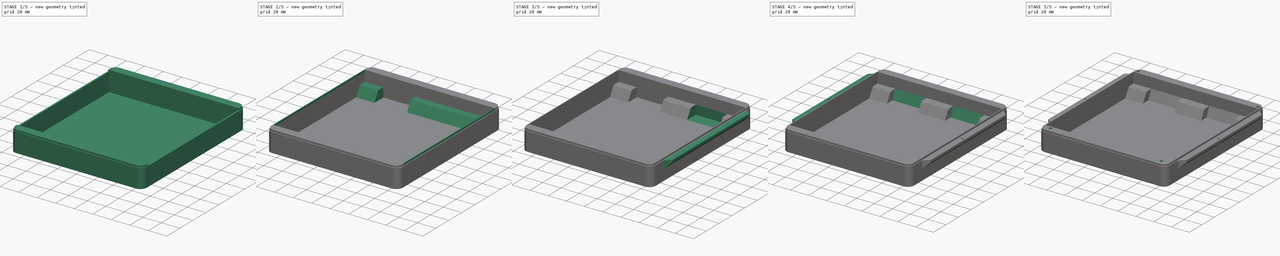
[diagram: build sequence overview — one tinted view per stage of 5, left to right]
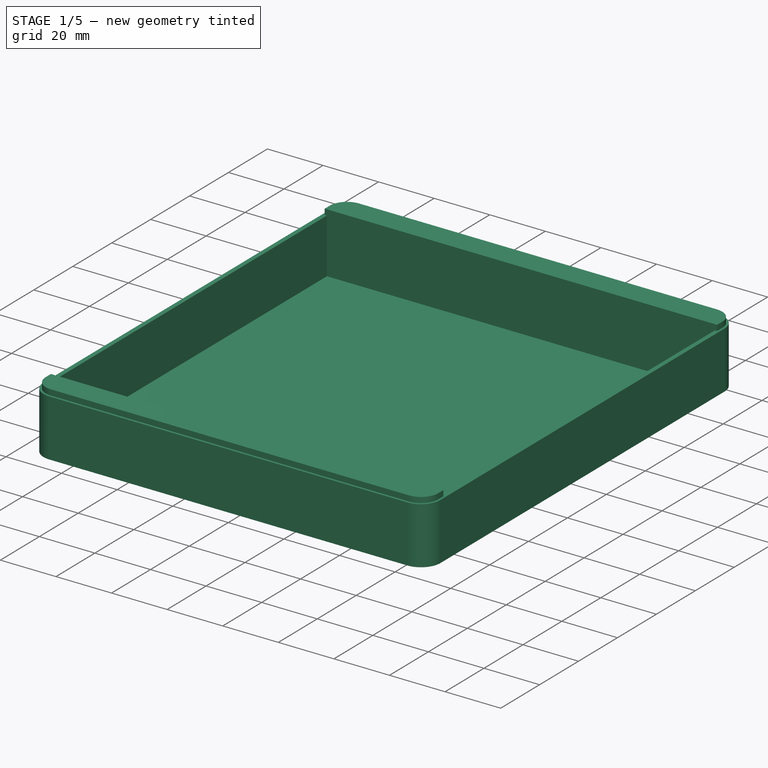
[diagram: stage 1 of 5 — iso view after this stage's code; geometry added in this stage tinted green]
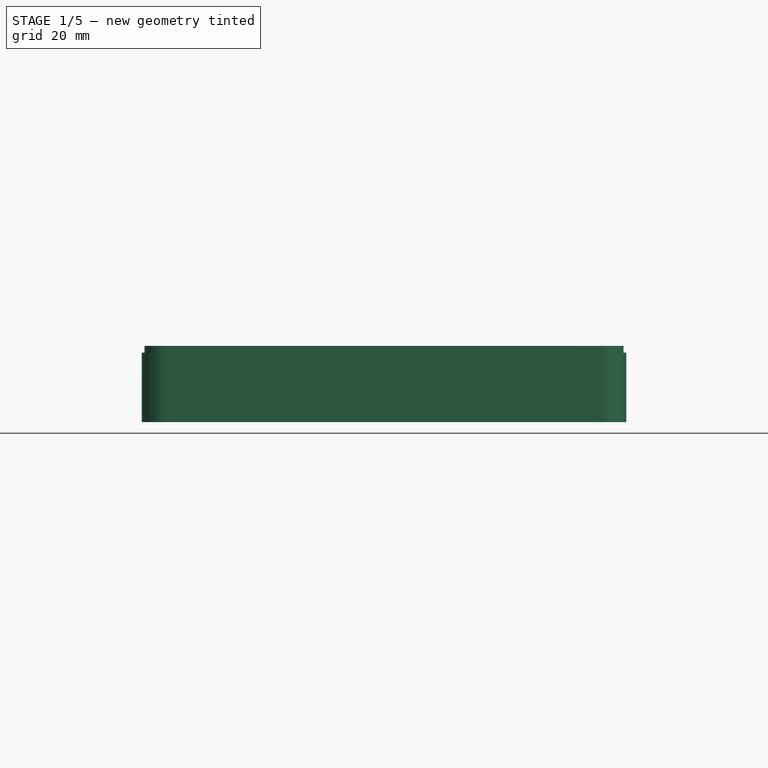
[diagram: stage 1 of 5 — front view after this stage's code; geometry added in this stage tinted green]
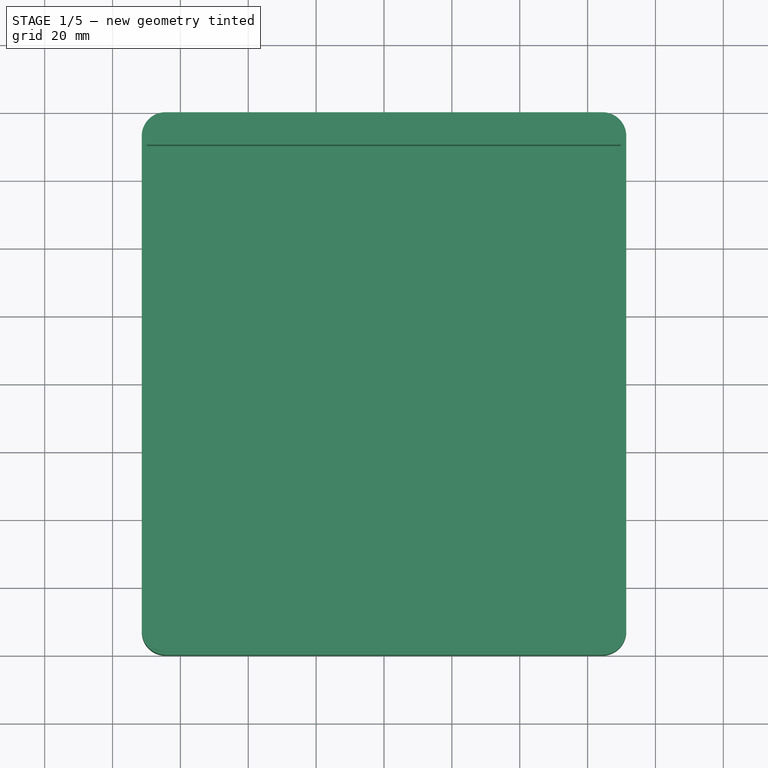
[diagram: stage 1 of 5 — top view after this stage's code; geometry added in this stage tinted green]
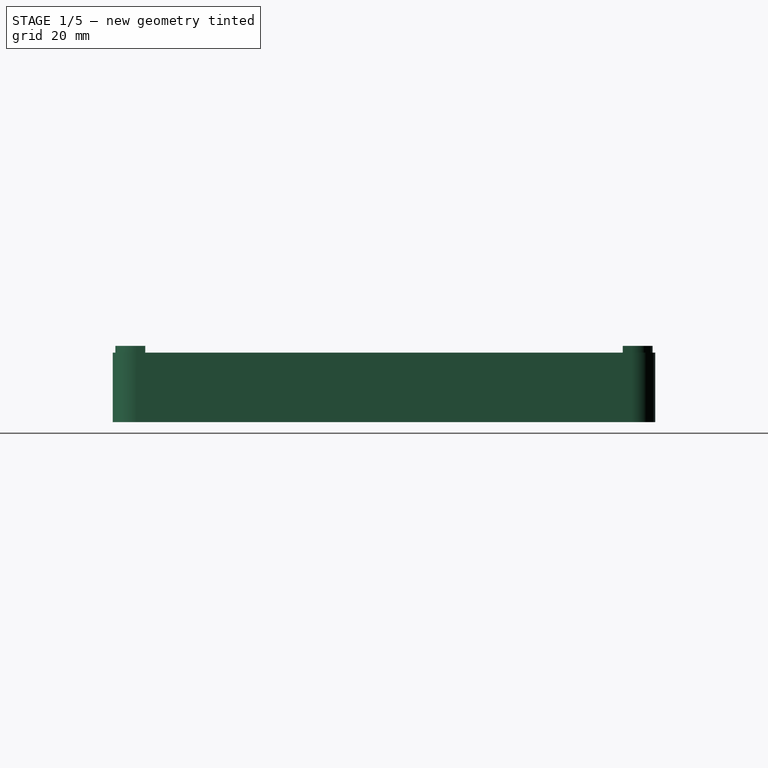
[diagram: stage 1 of 5 — right view after this stage's code; geometry added in this stage tinted green]
FCSTD DOCUMENT  (FreeCAD 2022.1021R26244 +5249 (Git))
Label: pack_bottom
License: All rights reserved
LicenseURL: http://en.wikipedia.org/wiki/All_rights_reserved
objects: Sketcher::SketchObject×17, PartDesign::Pad×17, PartDesign::Fillet×4, PartDesign::Mirrored×4, PartDesign::Draft×3, Spreadsheet::Sheet×1, PartDesign::Chamfer×1, PartDesign::Body×1
note: 122 computed .brp shape members not serialized (recipe doc carries the construction recipe); baked Part::Feature solids carry a one-line shape summary decoded from their .brp

FEATURE [Spreadsheet::Sheet] Spreadsheet  label="Params"
  PythonMode = false
  ShowCells = 0
  TreeRank = 1
  cells = A1=width_inner; B1(width_inner)=139.6; D1=The width of the inside area of the pack; A2=width_wall; B2(width_wall)=1.6; D2=How thick the walls of the pack are; A3=width_wall_handle; B3(width_wall_handle)=8; D3=How thick the wall of the handle side is; A4=width_wall_dock; B4(width_wall_dock)=8; D4=How thick the wall of the docking side is; A5=height_bottom; B5(height_bottom)=0.75; D5=Thickness of the bottom wall; A6=length_inner; B6(length_inner)=140.7; D6=The length of the inside area of the pack; A7=height_inner; B7(height_inner)=19.75; D7=Height of the inside area of the bottom of the pack; A8=angle_slide_rail; B8(angle_slide_rail)=35; A9=angle_slide_rail_end; B9(angle_slide_rail_end)=40; A10=r_corner_roundover; B10(r_corner_roundover)=7; D10=Roundover of the corners of the pack; A11=width_outside_lip; B11(width_outside_lip)=0.8; D11=Width of the lip that makes so the top and bottom of the pack can mate properly. Best to use half of the wall width; A12=height_lip; B12(height_lip)=2; D12=Height of the lip that mates the top and bottom
FEATURE [Sketcher::SketchObject] Sketch  label="main body"
  ArcFitTolerance = 1e-06
  AttachmentSupport = -> [XY_Plane]
  ExternalBSplineMaxDegree = 0
  ExternalBSplineTolerance = 0
  FullyConstrained = true
  InternalTolerance = 1e-06
  MakeInternals = false
  MapMode = 5
  Support = -> [XY_Plane]
  TreeRank = 14
  expr: Constraints[8] = <<Params>>.width_inner + 2 * <<Params>>.width_wall
  expr: Constraints[9] = <<Params>>.length_inner + 2 * <<Params>>.width_wall
  sketch-geometry (4):
    g0: LineSegment StartX=-71.4 StartY=71.95 StartZ=0 EndX=71.4 EndY=71.95 EndZ=0
    g1: LineSegment StartX=71.4 StartY=71.95 StartZ=0 EndX=71.4 EndY=-71.95 EndZ=0
    g2: LineSegment StartX=71.4 StartY=-71.95 StartZ=0 EndX=-71.4 EndY=-71.95 EndZ=0
    g3: LineSegment StartX=-71.4 StartY=-71.95 StartZ=0 EndX=-71.4 EndY=71.95 EndZ=0
  constraints (11):
    c: Coincident(g0,g1)
    c: Coincident(g1,g2)
    c: Coincident(g2,g3)
    c: Coincident(g3,g0)
    c: Horizontal(g0)
    c: Horizontal(g2)
    c: Vertical(g1)
    c: Vertical(g3)
    c: DistanceX(g2,g1) = 142.8
    c: DistanceY(g2,g0) = 143.9
    c: Symmetric(g0,g1,g-1)
FEATURE [PartDesign::Pad] Pad  label="battery box"
  AddSubType = 0
  AlongSketchNormal = false
  AutoTaperInnerAngle = false
  CheckUpToFaceLimits = true
  ClaimChildren = false
  Direction = (0,0,1)
  Fit = 0
  FitJoin = 0
  InnerFit = 0
  InnerFitJoin = 0
  Length = 20.5
  Length2 = 100
  Linearize = true
  NewSolid = false
  Profile = -> Sketch
  Suppress = false
  TaperInnerAngle = 0
  TaperInnerAngleRev = 0
  TreeRank = 15
  Type = 0
  _ProfileBasedVersion = 1
  expr: Length = <<Params>>.height_bottom + <<Params>>.height_inner
FEATURE [Sketcher::SketchObject] Sketch001  label="dock & handle walls"
  ArcFitTolerance = 1e-06
  AttachmentSupport = -> [Pad]
  ExternalBSplineMaxDegree = 0
  ExternalBSplineTolerance = 0
  ExternalGeometry = -> [Pad]
  FullyConstrained = true
  InternalTolerance = 1e-06
  MakeInternals = false
  MapMode = 5
  Placement = pos=(0,0,0) rot=(1,0,0;3.14159rad)
  Support = -> [Pad]
  TreeRank = 16
  expr: Constraints[10] = <<Params>>.width_wall_dock
  expr: Constraints[21] = <<Params>>.width_wall_handle
  sketch-geometry (8):
    g0: LineSegment StartX=-71.4 StartY=71.95 StartZ=0 EndX=71.4 EndY=71.95 EndZ=0
    g1: LineSegment StartX=71.4 StartY=71.95 StartZ=0 EndX=71.4 EndY=79.95 EndZ=0
    g2: LineSegment StartX=71.4 StartY=79.95 StartZ=0 EndX=-71.4 EndY=79.95 EndZ=0
    g3: LineSegment StartX=-71.4 StartY=79.95 StartZ=0 EndX=-71.4 EndY=71.95 EndZ=0
    g4: LineSegment StartX=-71.4 StartY=-71.95 StartZ=0 EndX=71.4 EndY=-71.95 EndZ=0
    g5: LineSegment StartX=71.4 StartY=-71.95 StartZ=0 EndX=71.4 EndY=-79.95 EndZ=0
    g6: LineSegment StartX=71.4 StartY=-79.95 StartZ=0 EndX=-71.4 EndY=-79.95 EndZ=0
    g7: LineSegment StartX=-71.4 StartY=-79.95 StartZ=0 EndX=-71.4 EndY=-71.95 EndZ=0
  constraints (22):
    c: Coincident(g0,g1)
    c: Coincident(g1,g2)
    c: Coincident(g2,g3)
    c: Coincident(g3,g0)
    c: Horizontal(g0)
    c: Horizontal(g2)
    c: Vertical(g1)
    c: Vertical(g3)
    c: Coincident(g0,g-3)
    c: Vertical(g1,g-3)
    c: DistanceY(g0,g2) = 8
    c: Coincident(g4,g5)
    c: Coincident(g5,g6)
    c: Coincident(g6,g7)
    c: Coincident(g7,g4)
    c: Horizontal(g4)
    c: Horizontal(g6)
    c: Vertical(g5)
    c: Vertical(g7)
    c: Coincident(g4,g-4)
    c: Vertical(g5,g-4)
    c: DistanceY(g6,g4) = 8
FEATURE [PartDesign::Pad] Pad001  label="front and back walls"
  AddSubType = 0
  AlongSketchNormal = false
  AutoTaperInnerAngle = false
  BaseFeature = -> Pad
  CheckUpToFaceLimits = true
  ClaimChildren = false
  Direction = (0,0,-1)
  Fit = 0
  FitJoin = 0
  InnerFit = 0
  InnerFitJoin = 0
  Length = 10
  Length2 = 100
  Linearize = true
  NewSolid = false
  Profile = -> Sketch001
  Suppress = false
  TaperInnerAngle = 0
  TaperInnerAngleRev = 0
  TreeRank = 17
  Type = 3
  UpToFace = -> Pad [Face6]
  _ProfileBasedVersion = 1
FEATURE [PartDesign::Fillet] Fillet  label="corner roundover"
  AddSubType = 0
  Base = -> Pad001 [Edge6,Edge9,Edge24,Edge19]
  BaseFeature = -> Pad001
  NewSolid = false
  Radius = 7
  SupportTransform = false
  Suppress = false
  TreeRank = 18
  expr: Radius = Spreadsheet.r_corner_roundover
FEATURE [Sketcher::SketchObject] Sketch002  label="compartment"
  ArcFitTolerance = 1e-06
  AttachmentSupport = -> [Fillet]
  ExternalBSplineMaxDegree = 0
  ExternalBSplineTolerance = 0
  FullyConstrained = true
  InternalTolerance = 1e-06
  MakeInternals = false
  MapMode = 5
  Placement = pos=(0,0,20.5) rot=(0,0,1;0rad)
  Support = -> [Fillet]
  TreeRank = 19
  expr: Constraints[10] = <<Params>>.length_inner
  expr: Constraints[9] = <<Params>>.width_inner
  sketch-geometry (4):
    g0: LineSegment StartX=-69.8 StartY=70.35 StartZ=0 EndX=69.8 EndY=70.35 EndZ=0
    g1: LineSegment StartX=69.8 StartY=70.35 StartZ=0 EndX=69.8 EndY=-70.35 EndZ=0
    g2: LineSegment StartX=69.8 StartY=-70.35 StartZ=0 EndX=-69.8 EndY=-70.35 EndZ=0
    g3: LineSegment StartX=-69.8 StartY=-70.35 StartZ=0 EndX=-69.8 EndY=70.35 EndZ=0
  constraints (11):
    c: Coincident(g0,g1)
    c: Coincident(g1,g2)
    c: Coincident(g2,g3)
    c: Coincident(g3,g0)
    c: Horizontal(g0)
    c: Horizontal(g2)
    c: Vertical(g1)
    c: Vertical(g3)
    c: Symmetric(g0,g1,g-1)
    c: DistanceX(g0,g0) = 139.6
    c: DistanceY(g2,g0) = 140.7
FEATURE [PartDesign::Pad] Pad002
  AddSubType = 1
  AlongSketchNormal = false
  AutoTaperInnerAngle = false
  BaseFeature = -> Fillet
  CheckUpToFaceLimits = true
  ClaimChildren = false
  Direction = (0,0,1)
  Fit = 0
  FitJoin = 0
  InnerFit = 0
  InnerFitJoin = 0
  Length = 19.75
  Length2 = 100
  Linearize = true
  NewSolid = false
  Profile = -> Sketch002
  Reversed = true
  Suppress = false
  TaperInnerAngle = 0
  TaperInnerAngleRev = 0
  TreeRank = 20
  Type = 0
  _ProfileBasedVersion = 1
  expr: Length = <<Params>>.height_inner
FEATURE [Sketcher::SketchObject] Sketch003
  ArcFitTolerance = 1e-06
  AttachmentSupport = -> [Pad002]
  ExternalBSplineMaxDegree = 0
  ExternalBSplineTolerance = 0
  ExternalGeometry = -> [Pad002]
  FullyConstrained = true
  InternalTolerance = 1e-06
  MakeInternals = false
  MapMode = 5
  Placement = pos=(0,0,20.5) rot=(0,0,1;0rad)
  Support = -> [Pad002]
  TreeRank = 21
  expr: Constraints[11] = <<Params>>.width_outside_lip
  sketch-geometry (18):
    g0: LineSegment StartX=-64.4 StartY=79.15 StartZ=0 EndX=64.4 EndY=79.15 EndZ=0
    g1: LineSegment StartX=64.4 StartY=79.15 StartZ=0 EndX=64.4 EndY=70.35 EndZ=0
    g2: LineSegment StartX=64.4 StartY=70.35 StartZ=0 EndX=-64.4 EndY=70.35 EndZ=0
    g3: LineSegment StartX=-64.4 StartY=70.35 StartZ=0 EndX=-64.4 EndY=79.15 EndZ=0
    g4: ArcOfCircle CenterX=64.4 CenterY=72.95 CenterZ=0 NormalX=0 NormalY=0 NormalZ=1 AngleXU=0 Radius=6.2 StartAngle=0 EndAngle=1.5708
    g5: LineSegment StartX=64.4 StartY=72.95 StartZ=0 EndX=64.4 EndY=79.15 EndZ=0
    g6: LineSegment StartX=64.4 StartY=72.95 StartZ=0 EndX=70.6 EndY=72.95 EndZ=0
    g7: LineSegment StartX=64.4 StartY=72.95 StartZ=0 EndX=70.6 EndY=72.95 EndZ=0
    g8: LineSegment StartX=70.6 StartY=72.95 StartZ=0 EndX=70.6 EndY=70.35 EndZ=0
    g9: LineSegment StartX=70.6 StartY=70.35 StartZ=0 EndX=64.4 EndY=70.35 EndZ=0
    g10: LineSegment StartX=64.4 StartY=70.35 StartZ=0 EndX=64.4 EndY=72.95 EndZ=0
    g11: ArcOfCircle CenterX=-64.4 CenterY=72.95 CenterZ=0 NormalX=0 NormalY=0 NormalZ=1 AngleXU=0 Radius=6.2 StartAngle=1.5708 EndAngle=3.14159
    g12: LineSegment StartX=-64.4 StartY=72.95 StartZ=0 EndX=-64.4 EndY=79.15 EndZ=0
    g13: LineSegment StartX=-64.4 StartY=72.95 StartZ=0 EndX=-70.6 EndY=72.95 EndZ=0
    g14: LineSegment StartX=-70.6 StartY=72.95 StartZ=0 EndX=-64.4 EndY=72.95 EndZ=0
    g15: LineSegment StartX=-64.4 StartY=72.95 StartZ=0 EndX=-64.4 EndY=70.35 EndZ=0
    g16: LineSegment StartX=-64.4 StartY=70.35 StartZ=0 EndX=-70.6 EndY=70.35 EndZ=0
    g17: LineSegment StartX=-70.6 StartY=70.35 StartZ=0 EndX=-70.6 EndY=72.95 EndZ=0
  constraints (48):
    c: Coincident(g0,g1)
    c: Coincident(g1,g2)
    c: Coincident(g2,g3)
    c: Coincident(g3,g0)
    c: Horizontal(g0)
    c: Horizontal(g2)
    c: Vertical(g1)
    c: Vertical(g3)
    c: PointOnObject(g-3,g3)
    c: PointOnObject(g-4,g1)
    c: PointOnObject(g1,g-5)
    c: DistanceY(g0,g-4) = 0.8
    c: Coincident(g5,g4)
    c: Coincident(g5,g4)
    c: Vertical(g5)
    c: Coincident(g6,g5)
    c: Coincident(g6,g4)
    c: Horizontal(g6)
    c: Coincident(g5,g-4)
    c: PointOnObject(g4,g0)
    c: Coincident(g7,g8)
    c: Coincident(g8,g9)
    c: Coincident(g9,g10)
    c: Coincident(g10,g7)
    c: Horizontal(g7)
    c: Horizontal(g9)
    c: Vertical(g8)
    c: Vertical(g10)
    c: Coincident(g7,g4)
    c: Coincident(g9,g1)
    c: Coincident(g12,g11)
    c: Coincident(g12,g11)
    c: Vertical(g12)
    c: Coincident(g13,g11)
    c: Coincident(g13,g11)
    c: Horizontal(g13)
    c: Coincident(g11,g-3)
    c: PointOnObject(g11,g0)
    c: Coincident(g14,g15)
    c: Coincident(g15,g16)
    c: Coincident(g16,g17)
    c: Coincident(g17,g14)
    c: Horizontal(g14)
    c: Horizontal(g16)
    c: Vertical(g15)
    c: Vertical(g17)
    c: Coincident(g14,g11)
    c: Coincident(g15,g2)
FEATURE [PartDesign::Pad] Pad003  label="inner lip dock"
  AddSubType = 0
  AlongSketchNormal = false
  AutoTaperInnerAngle = false
  BaseFeature = -> Pad002
  CheckUpToFaceLimits = true
  ClaimChildren = false
  Direction = (0,0,1)
  Fit = 0
  FitJoin = 0
  InnerFit = 0
  InnerFitJoin = 0
  Length = 2
  Length2 = 100
  Linearize = true
  NewSolid = false
  Profile = -> Sketch003
  Suppress = false
  TaperInnerAngle = 0
  TaperInnerAngleRev = 0
  TreeRank = 22
  Type = 0
  _ProfileBasedVersion = 1
  expr: Length = <<Params>>.height_lip
FEATURE [Sketcher::SketchObject] Sketch004
  ArcFitTolerance = 1e-06
  AttachmentSupport = -> [Pad003]
  ExternalBSplineMaxDegree = 0
  ExternalBSplineTolerance = 0
  ExternalGeometry = -> [Pad003]
  FullyConstrained = true
  InternalTolerance = 1e-06
  MakeInternals = false
  MapMode = 5
  Placement = pos=(0,0,20.5) rot=(0,0,1;0rad)
  Support = -> [Pad003]
  TreeRank = 23
  expr: Constraints[40] = <<Params>>.width_outside_lip
  sketch-geometry (18):
    g0: LineSegment StartX=-64.4 StartY=-70.35 StartZ=0 EndX=64.4 EndY=-70.35 EndZ=0
    g1: LineSegment StartX=64.4 StartY=-70.35 StartZ=0 EndX=64.4 EndY=-79.15 EndZ=0
    g2: LineSegment StartX=64.4 StartY=-79.15 StartZ=0 EndX=-64.4 EndY=-79.15 EndZ=0
    g3: LineSegment StartX=-64.4 StartY=-79.15 StartZ=0 EndX=-64.4 EndY=-70.35 EndZ=0
    g4: ArcOfCircle CenterX=-64.4 CenterY=-72.95 CenterZ=0 NormalX=0 NormalY=0 NormalZ=1 AngleXU=0 Radius=6.2 StartAngle=3.14159 EndAngle=4.71239
    g5: LineSegment StartX=-70.6 StartY=-72.95 StartZ=0 EndX=-64.4 EndY=-72.95 EndZ=0
    g6: LineSegment StartX=-64.4 StartY=-72.95 StartZ=0 EndX=-64.4 EndY=-79.15 EndZ=0
    g7: LineSegment StartX=-70.6 StartY=-70.35 StartZ=0 EndX=-64.4 EndY=-70.35 EndZ=0
    g8: LineSegment StartX=-64.4 StartY=-70.35 StartZ=0 EndX=-64.4 EndY=-72.95 EndZ=0
    g9: LineSegment StartX=-64.4 StartY=-72.95 StartZ=0 EndX=-70.6 EndY=-72.95 EndZ=0
    g10: LineSegment StartX=-70.6 StartY=-72.95 StartZ=0 EndX=-70.6 EndY=-70.35 EndZ=0
    g11: ArcOfCircle CenterX=64.4 CenterY=-72.95 CenterZ=0 NormalX=0 NormalY=0 NormalZ=1 AngleXU=0 Radius=6.2 StartAngle=4.71239 EndAngle=6.28319
    g12: LineSegment StartX=64.4 StartY=-79.15 StartZ=0 EndX=64.4 EndY=-72.95 EndZ=0
    g13: LineSegment StartX=64.4 StartY=-72.95 StartZ=0 EndX=70.6 EndY=-72.95 EndZ=0
    g14: LineSegment StartX=64.4 StartY=-72.95 StartZ=0 EndX=70.6 EndY=-72.95 EndZ=0
    g15: LineSegment StartX=70.6 StartY=-72.95 StartZ=0 EndX=70.6 EndY=-70.35 EndZ=0
    g16: LineSegment StartX=70.6 StartY=-70.35 StartZ=0 EndX=64.4 EndY=-70.35 EndZ=0
    g17: LineSegment StartX=64.4 StartY=-70.35 StartZ=0 EndX=64.4 EndY=-72.95 EndZ=0
  constraints (48):
    c: Coincident(g0,g1)
    c: Coincident(g1,g2)
    c: Coincident(g2,g3)
    c: Coincident(g3,g0)
    c: Horizontal(g0)
    c: Horizontal(g2)
    c: Vertical(g1)
    c: Vertical(g3)
    c: Coincident(g5,g4)
    c: Coincident(g5,g4)
    c: Horizontal(g5)
    c: Coincident(g6,g4)
    c: Coincident(g6,g4)
    c: Vertical(g6)
    c: Coincident(g7,g8)
    c: Coincident(g8,g9)
    c: Coincident(g9,g10)
    c: Coincident(g10,g7)
    c: Horizontal(g7)
    c: Horizontal(g9)
    c: Vertical(g8)
    c: Vertical(g10)
    c: Coincident(g12,g11)
    c: Coincident(g12,g11)
    c: Vertical(g12)
    c: Coincident(g13,g11)
    c: Horizontal(g13)
    c: Coincident(g11,g13)
    c: Coincident(g14,g15)
    c: Coincident(g15,g16)
    c: Coincident(g16,g17)
    c: Coincident(g17,g14)
    c: Horizontal(g14)
    c: Horizontal(g16)
    c: Vertical(g15)
    c: Vertical(g17)
    c: PointOnObject(g-3,g3)
    c: PointOnObject(g-4,g1)
    c: PointOnObject(g0,g-5)
    c: Coincident(g11,g-4)
    c: DistanceY(g-4,g1) = 0.8
    c: PointOnObject(g11,g2)
    c: Coincident(g16,g0)
    c: Coincident(g14,g11)
    c: Coincident(g4,g-3)
    c: PointOnObject(g4,g2)
    c: Coincident(g7,g0)
    c: Coincident(g9,g4)
FEATURE [PartDesign::Pad] Pad004  label="inner lip handle"
  AddSubType = 0
  AlongSketchNormal = false
  AutoTaperInnerAngle = false
  BaseFeature = -> Pad003
  CheckUpToFaceLimits = true
  ClaimChildren = false
  Direction = (0,0,1)
  Fit = 0
  FitJoin = 0
  InnerFit = 0
  InnerFitJoin = 0
  Length = 2
  Length2 = 100
  Linearize = true
  NewSolid = false
  Profile = -> Sketch004
  Suppress = false
  TaperInnerAngle = 0
  TaperInnerAngleRev = 0
  TreeRank = 24
  Type = 0
  _ProfileBasedVersion = 1
  expr: Length = <<Params>>.height_lip
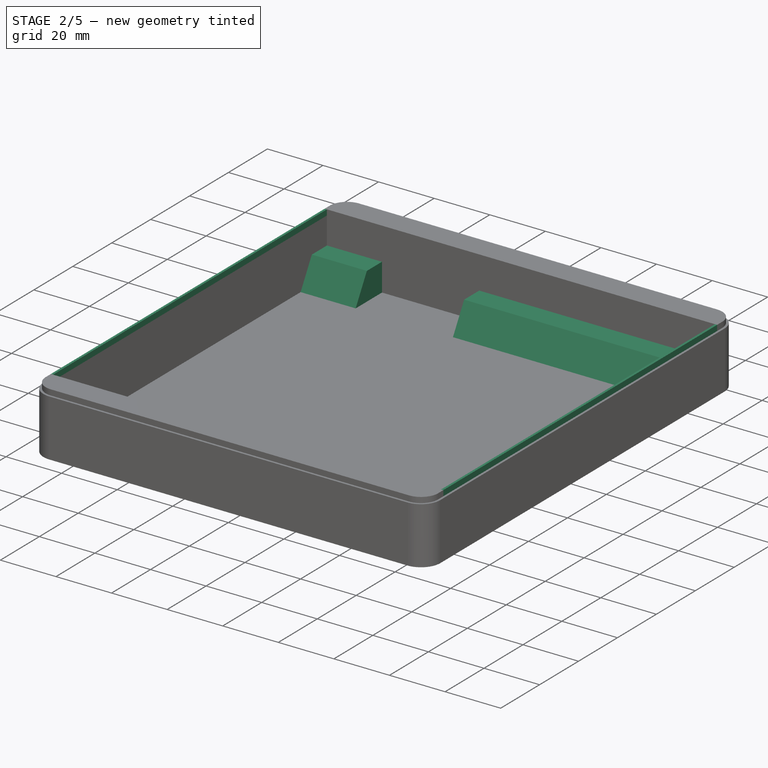
[diagram: stage 2 of 5 — iso view after this stage's code; geometry added in this stage tinted green]
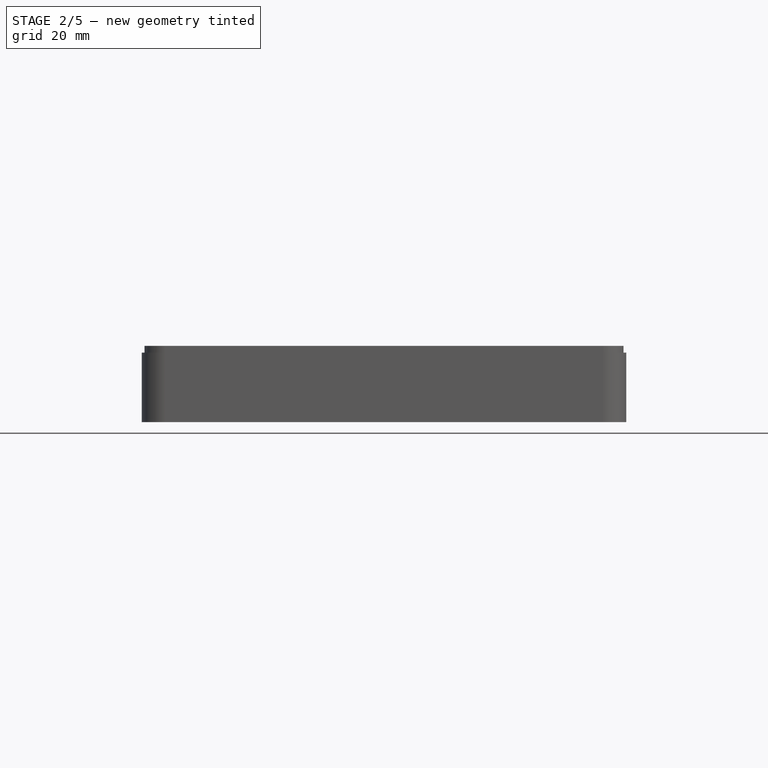
[diagram: stage 2 of 5 — front view after this stage's code; geometry added in this stage tinted green]
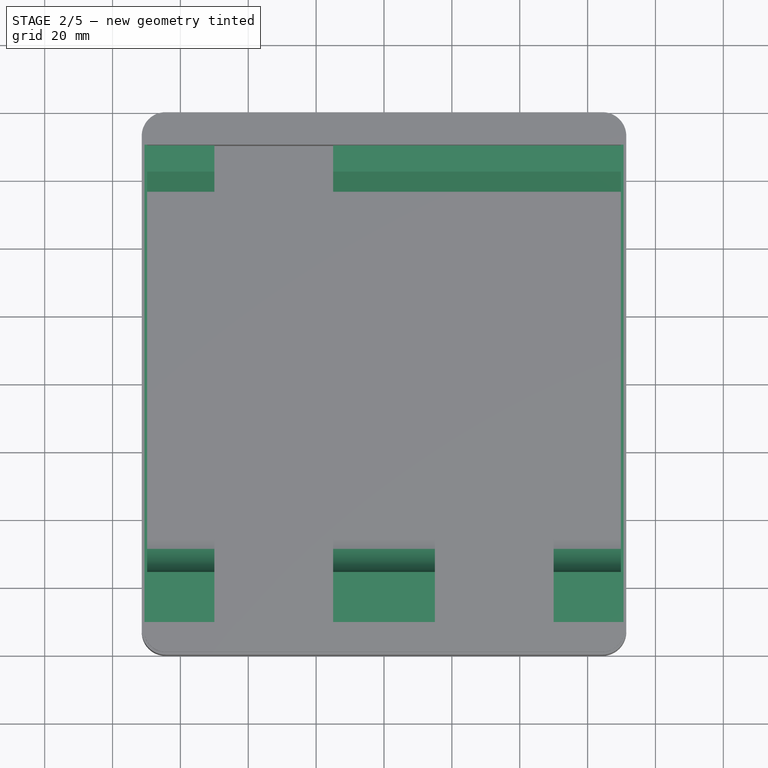
[diagram: stage 2 of 5 — top view after this stage's code; geometry added in this stage tinted green]
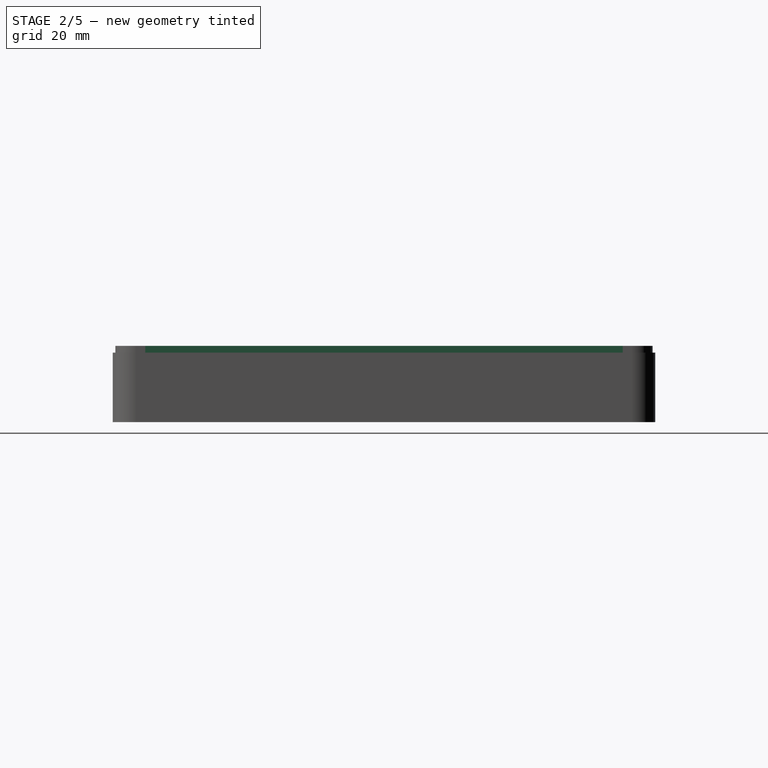
[diagram: stage 2 of 5 — right view after this stage's code; geometry added in this stage tinted green]
FEATURE [Sketcher::SketchObject] Sketch005
  ArcFitTolerance = 1e-06
  AttachmentSupport = -> [Pad004]
  ExternalBSplineMaxDegree = 0
  ExternalBSplineTolerance = 0
  ExternalGeometry = -> [Pad004]
  FullyConstrained = true
  InternalTolerance = 1e-06
  MakeInternals = false
  MapMode = 5
  Placement = pos=(0,0,20.5) rot=(0,0,1;0rad)
  Support = -> [Pad004]
  TreeRank = 25
  sketch-geometry (8):
    g0: LineSegment StartX=-70.6 StartY=70.35 StartZ=0 EndX=-69.8 EndY=70.35 EndZ=0
    g1: LineSegment StartX=-69.8 StartY=70.35 StartZ=0 EndX=-69.8 EndY=-70.35 EndZ=0
    g2: LineSegment StartX=-69.8 StartY=-70.35 StartZ=0 EndX=-70.6 EndY=-70.35 EndZ=0
    g3: LineSegment StartX=-70.6 StartY=-70.35 StartZ=0 EndX=-70.6 EndY=70.35 EndZ=0
    g4: LineSegment StartX=69.8 StartY=70.35 StartZ=0 EndX=70.6 EndY=70.35 EndZ=0
    g5: LineSegment StartX=70.6 StartY=70.35 StartZ=0 EndX=70.6 EndY=-70.35 EndZ=0
    g6: LineSegment StartX=70.6 StartY=-70.35 StartZ=0 EndX=69.8 EndY=-70.35 EndZ=0
    g7: LineSegment StartX=69.8 StartY=-70.35 StartZ=0 EndX=69.8 EndY=70.35 EndZ=0
  constraints (18):
    c: Coincident(g0,g1)
    c: Coincident(g1,g2)
    c: Coincident(g2,g3)
    c: Coincident(g3,g0)
    c: Horizontal(g0)
    c: Vertical(g3)
    c: Coincident(g1,g-5)
    c: Coincident(g2,g-6)
    c: Coincident(g0,g-5)
    c: Coincident(g4,g5)
    c: Coincident(g5,g6)
    c: Coincident(g6,g7)
    c: Coincident(g7,g4)
    c: Horizontal(g4)
    c: Coincident(g6,g-4)
    c: Coincident(g5,g-3)
    c: Coincident(g4,g-4)
    c: Vertical(g5)
FEATURE [PartDesign::Pad] Pad005  label="inner lip sides"
  AddSubType = 0
  AlongSketchNormal = false
  AutoTaperInnerAngle = false
  BaseFeature = -> Pad004
  CheckUpToFaceLimits = true
  ClaimChildren = false
  Direction = (0,0,1)
  Fit = 0
  FitJoin = 0
  InnerFit = 0
  InnerFitJoin = 0
  Length = 2
  Length2 = 100
  Linearize = true
  NewSolid = false
  Profile = -> Sketch005
  Suppress = false
  TaperInnerAngle = 0
  TaperInnerAngleRev = 0
  TreeRank = 26
  Type = 0
  _ProfileBasedVersion = 1
  expr: Length = <<Params>>.height_lip
FEATURE [Sketcher::SketchObject] Sketch006
  ArcFitTolerance = 1e-06
  AttachmentSupport = -> [Pad005]
  ExternalBSplineMaxDegree = 5
  ExternalBSplineTolerance = 0.0001
  ExternalGeometry = -> [Pad005]
  FullyConstrained = true
  InternalTolerance = 1e-06
  MakeInternals = false
  MapMode = 5
  Placement = pos=(-69.8,0,0) rot=(0.57735,0.57735,0.57735;2.0944rad)
  Support = -> [Pad005]
  TreeRank = 27
  sketch-geometry (4):
    g0: LineSegment StartX=56.85 StartY=0.75 StartZ=0 EndX=70.35 EndY=0.75 EndZ=0
    g1: LineSegment StartX=70.35 StartY=0.75 StartZ=0 EndX=70.35 EndY=10.75 EndZ=0
    g2: LineSegment StartX=70.35 StartY=10.75 StartZ=0 EndX=62.6003 EndY=10.75 EndZ=0
    g3: LineSegment StartX=62.6003 StartY=10.75 StartZ=0 EndX=56.85 EndY=0.75 EndZ=0
  constraints (11):
    c: Horizontal(g0)
    c: Coincident(g1,g0)
    c: Coincident(g2,g1)
    c: Horizontal(g2)
    c: Coincident(g3,g2)
    c: Coincident(g3,g0)
    c: Perpendicular(g0,g1)
    c: Angle(g0,g3) = 1.04894
    c: DistanceX(g0,g0) = 13.5
    c: DistanceY(g1,g1) = 10
    c: Coincident(g0,g-3)
FEATURE [PartDesign::Pad] Pad006  label="dock side bat support"
  AddSubType = 0
  AlongSketchNormal = false
  AutoTaperInnerAngle = true
  BaseFeature = -> Pad005
  CheckUpToFaceLimits = true
  ClaimChildren = false
  Direction = (1,0,0)
  Fit = 0
  FitJoin = 0
  InnerFit = 0
  InnerFitJoin = 0
  Length = 20
  Length2 = 100
  Linearize = true
  NewSolid = false
  Profile = -> Sketch006
  Suppress = false
  TaperInnerAngle = 0
  TaperInnerAngleRev = 0
  TreeRank = 28
  Type = 3
  UpToFace = -> Pad005 [Face46]
  _ProfileBasedVersion = 1
  expr: Length = 20
FEATURE [Sketcher::SketchObject] Sketch007
  ArcFitTolerance = 1e-06
  AttachmentSupport = -> [Pad006]
  ExternalBSplineMaxDegree = 5
  ExternalBSplineTolerance = 0.0001
  ExternalGeometry = -> [Pad006]
  FullyConstrained = true
  InternalTolerance = 1e-06
  MakeInternals = false
  MapMode = 5
  Placement = pos=(-69.8,0,0) rot=(0.57735,0.57735,0.57735;2.0944rad)
  Support = -> [Pad006]
  TreeRank = 29
  expr: Constraints[10] = 15 + 19.5 / 2
  expr: Constraints[7] = 19.5 / 2
  expr: Constraints[8] = 19.5 / 2
  sketch-geometry (4):
    g0: LineSegment StartX=-70.35 StartY=10.5 StartZ=0 EndX=-70.35 EndY=0.75 EndZ=0
    g1: LineSegment StartX=-70.35 StartY=0.75 StartZ=0 EndX=-45.6 EndY=0.75 EndZ=0
    g2: LineSegment StartX=-70.35 StartY=10.5 StartZ=0 EndX=-55.35 EndY=10.5 EndZ=0
    g3: ArcOfCircle CenterX=-45.6 CenterY=10.5 CenterZ=0 NormalX=0 NormalY=0 NormalZ=1 AngleXU=0 Radius=9.75 StartAngle=3.14159 EndAngle=4.71239
  constraints (12):
    c: Vertical(g0)
    c: Coincident(g1,g0)
    c: Perpendicular(g0,g1)
    c: Coincident(g2,g0)
    c: Horizontal(g2)
    c: Coincident(g3,g2)
    c: Coincident(g3,g1)
    c: Radius(g3) = 9.75
    c: DistanceY(g0,g0) = 9.75
    c: DistanceX(g2,g2) = 15
    c: DistanceX(g1,g1) = 24.75
    c: Coincident(g0,g-3)
FEATURE [PartDesign::Pad] Pad007  label="handle side bat support"
  AddSubType = 0
  AlongSketchNormal = false
  AutoTaperInnerAngle = true
  BaseFeature = -> Pad006
  CheckUpToFaceLimits = true
  ClaimChildren = false
  Direction = (1,0,0)
  Fit = 0
  FitJoin = 0
  InnerFit = 0
  InnerFitJoin = 0
  Length = 10
  Length2 = 100
  Linearize = true
  NewSolid = false
  Profile = -> Sketch007
  Suppress = false
  TaperInnerAngle = 0
  TaperInnerAngleRev = 0
  TreeRank = 30
  Type = 3
  UpToFace = -> Pad006 [Face46]
  _ProfileBasedVersion = 1
FEATURE [Sketcher::SketchObject] Sketch008
  ArcFitTolerance = 1e-06
  AttachmentSupport = -> [Pad007]
  ExternalBSplineMaxDegree = 5
  ExternalBSplineTolerance = 0.0001
  ExternalGeometry = -> [Pad007]
  FullyConstrained = true
  InternalTolerance = 1e-06
  MakeInternals = false
  MapMode = 5
  Placement = pos=(0,0,10.5) rot=(0,0,1;0rad)
  Support = -> [Pad007]
  TreeRank = 31
  sketch-geometry (4):
    g0: LineSegment StartX=-50 StartY=-45.6 StartZ=0 EndX=-15 EndY=-45.6 EndZ=0
    g1: LineSegment StartX=-15 StartY=-45.6 StartZ=0 EndX=-15 EndY=-70.35 EndZ=0
    g2: LineSegment StartX=-15 StartY=-70.35 StartZ=0 EndX=-50 EndY=-70.35 EndZ=0
    g3: LineSegment StartX=-50 StartY=-70.35 StartZ=0 EndX=-50 EndY=-45.6 EndZ=0
  constraints (12):
    c: Coincident(g0,g1)
    c: Coincident(g1,g2)
    c: Coincident(g2,g3)
    c: Coincident(g3,g0)
    c: Horizontal(g0)
    c: Horizontal(g2)
    c: Vertical(g1)
    c: Vertical(g3)
    c: Distance(g1,g-2) = 15
    c: DistanceX(g0,g0) = 35
    c: PointOnObject(g1,g-3)
    c: PointOnObject(g0,g-4)
FEATURE [PartDesign::Pad] Pad008  label="handle side support cutout"
  AddSubType = 1
  AlongSketchNormal = false
  AutoTaperInnerAngle = true
  BaseFeature = -> Pad007
  CheckUpToFaceLimits = true
  ClaimChildren = false
  Direction = (0,0,1)
  Fit = 0
  FitJoin = 0
  InnerFit = 0
  InnerFitJoin = 0
  Length = 10
  Length2 = 100
  Linearize = true
  NewSolid = false
  Profile = -> Sketch008
  Suppress = false
  TaperInnerAngle = 0
  TaperInnerAngleRev = 0
  TreeRank = 32
  Type = 3
  UpToFace = -> Pad007 [Face51]
  _ProfileBasedVersion = 1
FEATURE [PartDesign::Mirrored] Mirrored
  AddSubType = 0
  BaseFeature = -> Pad008
  CopyShape = false
  MirrorPlane = -> YZ_Plane
  NewSolid = false
  ParallelTransform = true
  SubTransform = true
  Suppress = false
  TreeRank = 33
  _Version = 3
FEATURE [Sketcher::SketchObject] Sketch009
  ArcFitTolerance = 1e-06
  AttachmentSupport = -> [Mirrored]
  ExternalBSplineMaxDegree = 5
  ExternalBSplineTolerance = 0.0001
  ExternalGeometry = -> [Mirrored]
  FullyConstrained = true
  InternalTolerance = 1e-06
  MakeInternals = false
  MapMode = 5
  Placement = pos=(0,0,10.75) rot=(0,0,1;0rad)
  Support = -> [Mirrored]
  TreeRank = 34
  expr: Constraints[8] = 30 / 2
  sketch-geometry (4):
    g0: LineSegment StartX=-50 StartY=70.35 StartZ=0 EndX=-15 EndY=70.35 EndZ=0
    g1: LineSegment StartX=-15 StartY=70.35 StartZ=0 EndX=-15 EndY=56.85 EndZ=0
    g2: LineSegment StartX=-15 StartY=56.85 StartZ=0 EndX=-50 EndY=56.85 EndZ=0
    g3: LineSegment StartX=-50 StartY=56.85 StartZ=0 EndX=-50 EndY=70.35 EndZ=0
  constraints (12):
    c: Coincident(g0,g1)
    c: Coincident(g1,g2)
    c: Coincident(g2,g3)
    c: Coincident(g3,g0)
    c: Horizontal(g0)
    c: Horizontal(g2)
    c: Vertical(g1)
    c: Vertical(g3)
    c: Distance(g1,g-2) = 15
    c: DistanceX(g2,g2) = 35
    c: PointOnObject(g0,g-4)
    c: PointOnObject(g2,g-3)
FEATURE [PartDesign::Pad] Pad009  label="dock side support cutout"
  AddSubType = 1
  AlongSketchNormal = false
  AutoTaperInnerAngle = true
  BaseFeature = -> Mirrored
  CheckUpToFaceLimits = true
  ClaimChildren = false
  Direction = (0,0,1)
  Fit = 0
  FitJoin = 0
  InnerFit = 0
  InnerFitJoin = 0
  Length = 10
  Length2 = 100
  Linearize = true
  NewSolid = false
  Profile = -> Sketch009
  Suppress = false
  TaperInnerAngle = 0
  TaperInnerAngleRev = 0
  TreeRank = 35
  Type = 3
  UpToFace = -> Mirrored [Face55]
  _ProfileBasedVersion = 1
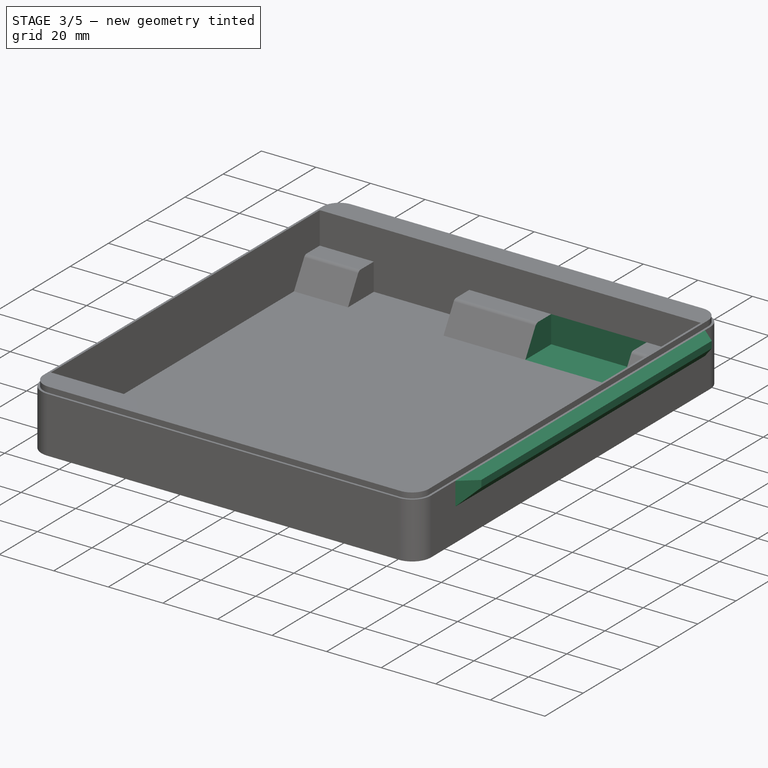
[diagram: stage 3 of 5 — iso view after this stage's code; geometry added in this stage tinted green]
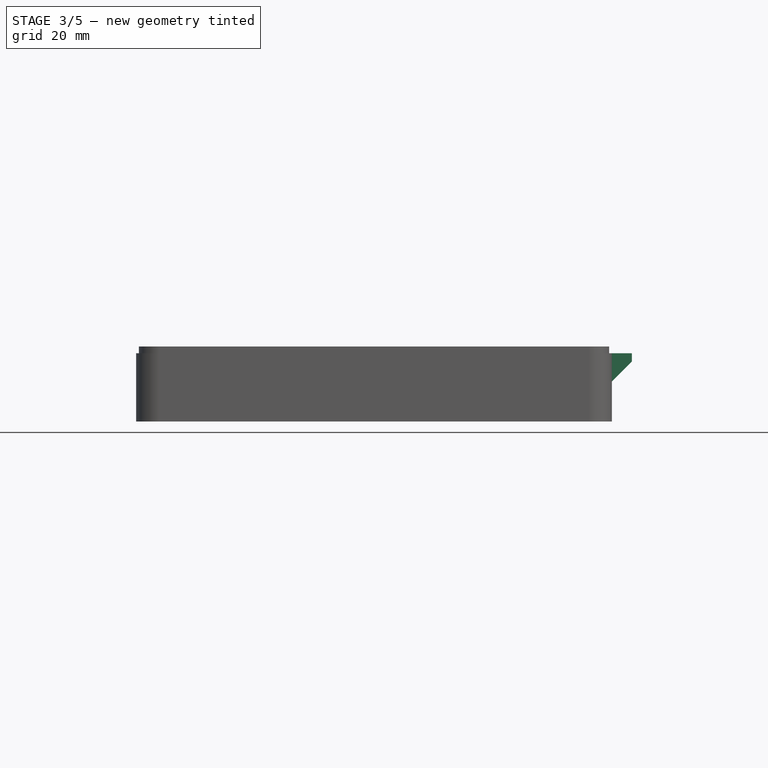
[diagram: stage 3 of 5 — front view after this stage's code; geometry added in this stage tinted green]
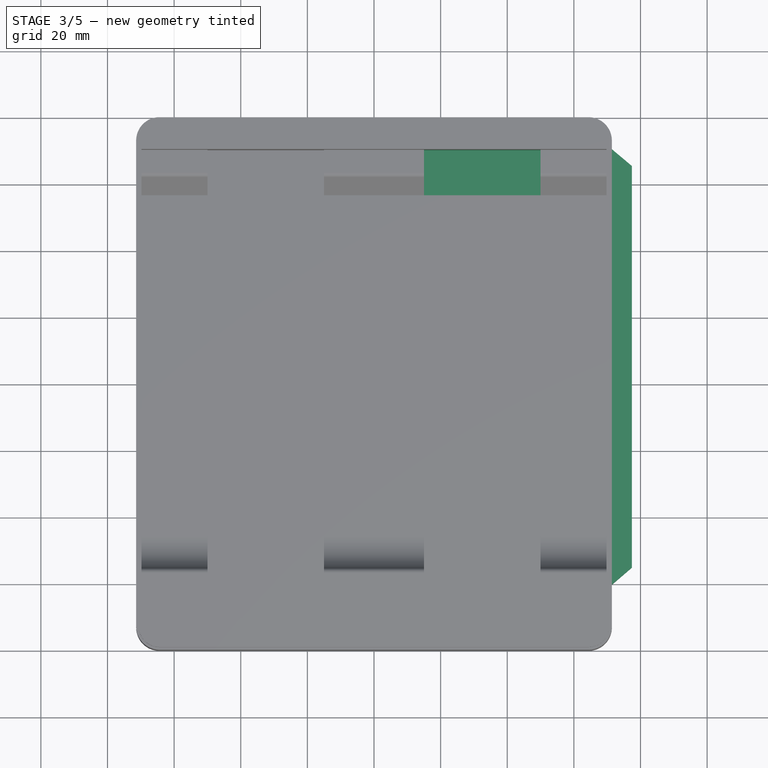
[diagram: stage 3 of 5 — top view after this stage's code; geometry added in this stage tinted green]
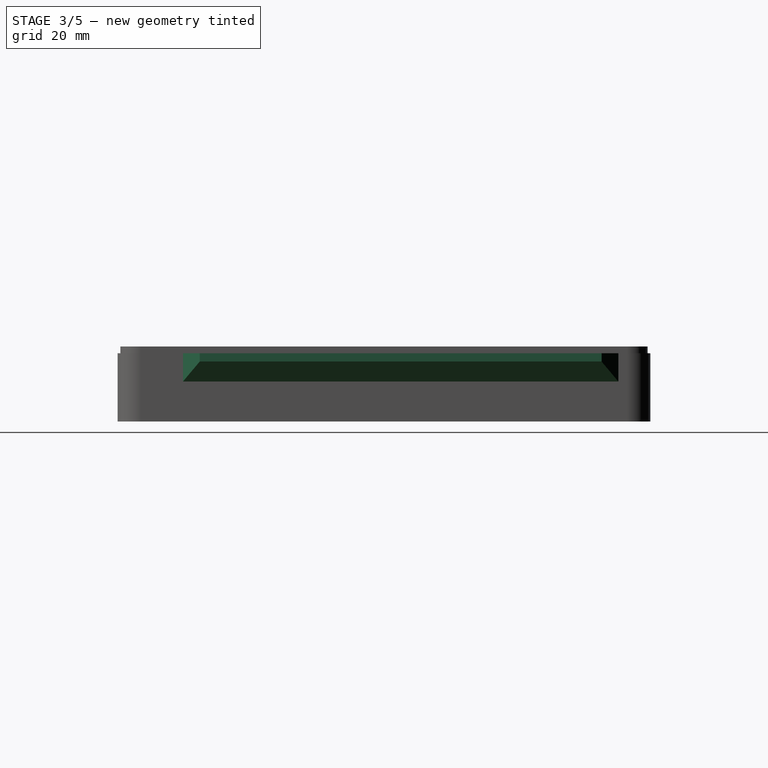
[diagram: stage 3 of 5 — right view after this stage's code; geometry added in this stage tinted green]
FEATURE [PartDesign::Mirrored] Mirrored001
  AddSubType = 0
  BaseFeature = -> Pad009
  CopyShape = false
  MirrorPlane = -> YZ_Plane
  NewSolid = false
  ParallelTransform = true
  SubTransform = true
  Suppress = false
  TreeRank = 36
  _Version = 3
FEATURE [PartDesign::Fillet] Fillet001
  AddSubType = 0
  Base = -> Mirrored001 [Edge137,Edge143,Edge131]
  BaseFeature = -> Mirrored001
  NewSolid = false
  Radius = 1.5
  SupportTransform = false
  Suppress = false
  TreeRank = 37
FEATURE [PartDesign::Fillet] Fillet002
  AddSubType = 0
  Base = -> Fillet001 [Edge70,Edge65,Edge27]
  BaseFeature = -> Fillet001
  NewSolid = false
  Radius = 1.5
  SupportTransform = false
  Suppress = false
  TreeRank = 38
FEATURE [Sketcher::SketchObject] Sketch010
  ArcFitTolerance = 1e-06
  AttachmentSupport = -> [Fillet002]
  ExternalBSplineMaxDegree = 5
  ExternalBSplineTolerance = 0.0001
  ExternalGeometry = -> [Fillet002]
  FullyConstrained = true
  InternalTolerance = 1e-06
  MakeInternals = false
  MapMode = 5
  Placement = pos=(0,70.35,0) rot=(1,0,0;1.5708rad)
  Support = -> [Fillet002]
  TreeRank = 39
  sketch-geometry (4):
    g0: LineSegment StartX=71.4 StartY=20.5 StartZ=0 EndX=77.4 EndY=20.5 EndZ=0
    g1: LineSegment StartX=77.4 StartY=20.5 StartZ=0 EndX=77.4 EndY=18 EndZ=0
    g2: LineSegment StartX=71.4 StartY=12 StartZ=0 EndX=71.4 EndY=20.5 EndZ=0
    g3: LineSegment StartX=77.4 StartY=18 StartZ=0 EndX=71.4 EndY=12 EndZ=0
  constraints (11):
    c: Coincident(g0,g1)
    c: Coincident(g2,g0)
    c: Horizontal(g0)
    c: Vertical(g1)
    c: Vertical(g2)
    c: DistanceX(g0,g0) = 6
    c: DistanceY(g1,g1) = 2.5
    c: Coincident(g3,g1)
    c: Coincident(g2,g3)
    c: Angle(g3,g2) = 0.785398
    c: Coincident(g0,g-3)
FEATURE [PartDesign::Pad] Pad010  label="slide rail"
  AddSubType = 0
  AlongSketchNormal = false
  AutoTaperInnerAngle = true
  BaseFeature = -> Fillet002
  CheckUpToFaceLimits = true
  ClaimChildren = false
  Direction = (0,-1,2e-16)
  Fit = 0
  FitJoin = 0
  InnerFit = 0
  InnerFitJoin = 0
  Length = 130.7
  Length2 = 100
  Linearize = true
  NewSolid = false
  Profile = -> Sketch010
  Suppress = false
  TaperInnerAngle = 0
  TaperInnerAngleRev = 0
  TreeRank = 40
  Type = 0
  _ProfileBasedVersion = 1
  expr: Length = <<Params>>.length_inner - 10
FEATURE [PartDesign::Draft] Draft
  AddSubType = 0
  Angle = 40
  Base = -> Pad010 [Face84,Face82]
  BaseFeature = -> Pad010
  NeutralPlane = -> Pad010 [Face68]
  NewSolid = false
  SupportTransform = false
  Suppress = false
  TreeRank = 41
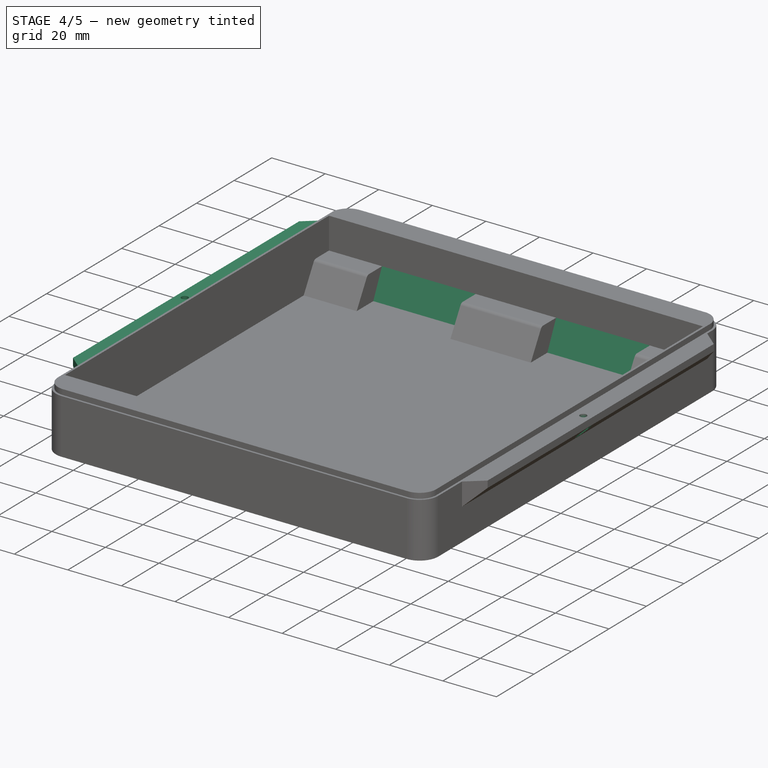
[diagram: stage 4 of 5 — iso view after this stage's code; geometry added in this stage tinted green]
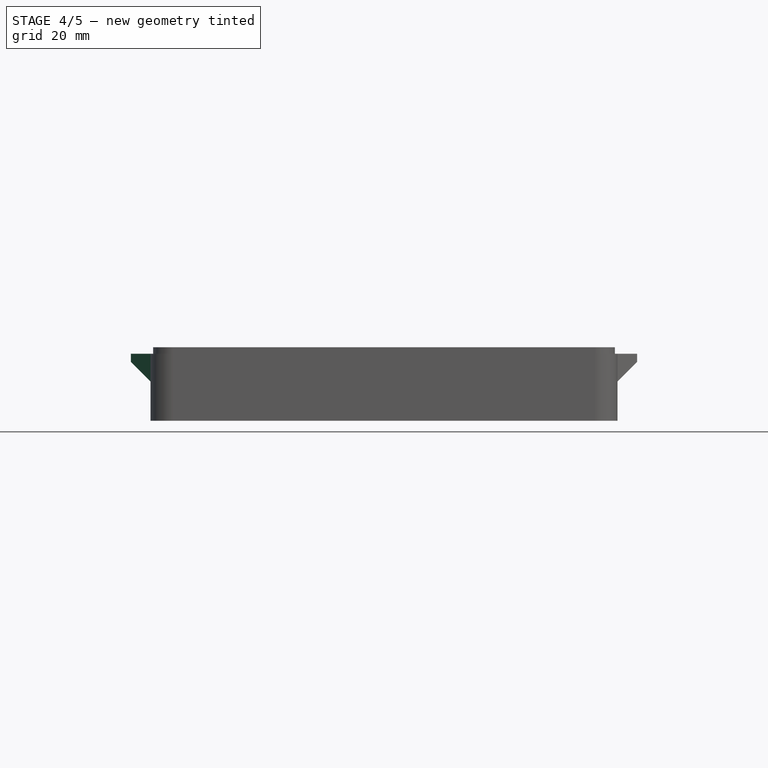
[diagram: stage 4 of 5 — front view after this stage's code; geometry added in this stage tinted green]
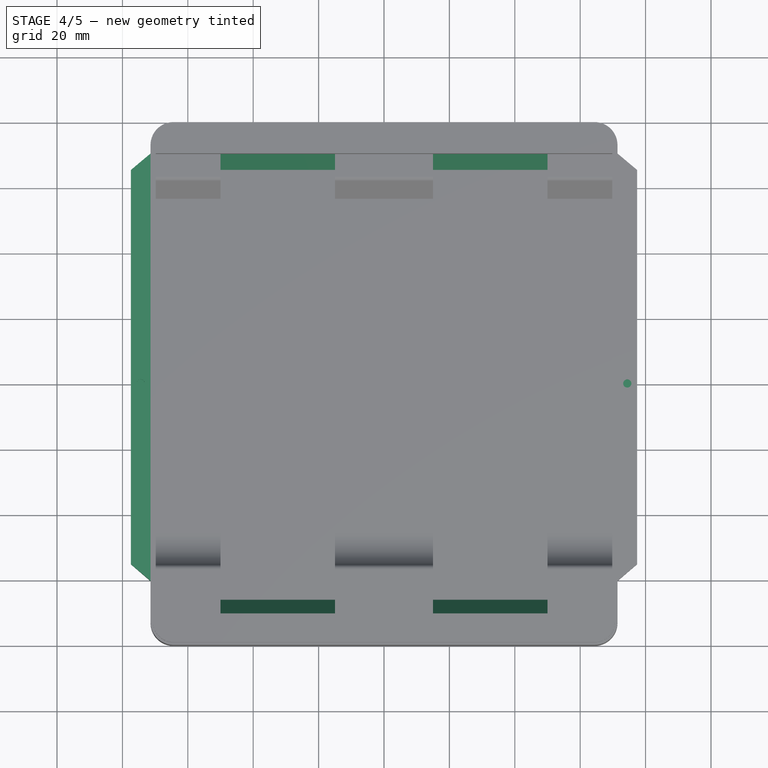
[diagram: stage 4 of 5 — top view after this stage's code; geometry added in this stage tinted green]
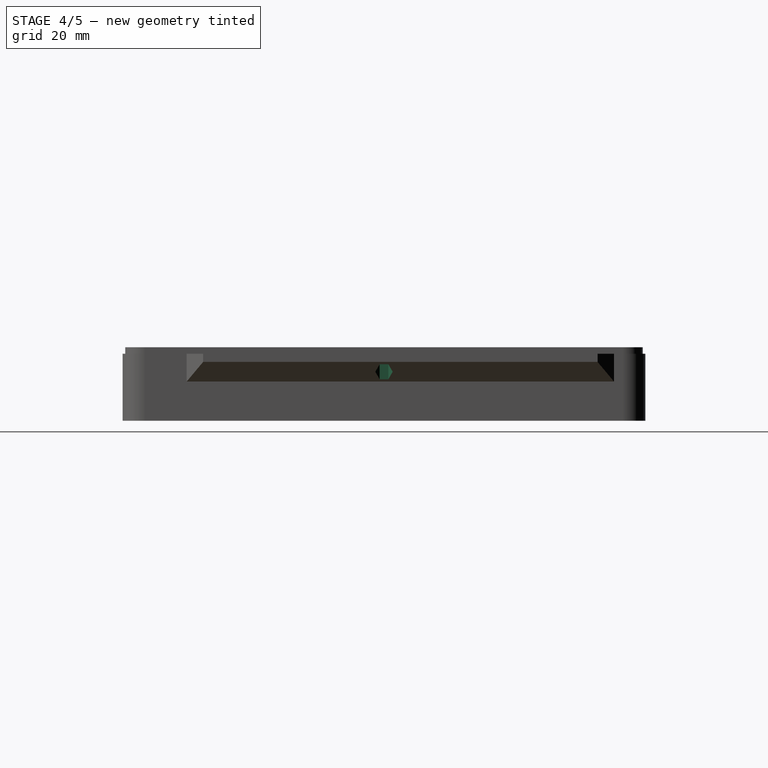
[diagram: stage 4 of 5 — right view after this stage's code; geometry added in this stage tinted green]
FEATURE [Sketcher::SketchObject] Sketch011
  ArcFitTolerance = 1e-06
  AttachmentOffset = pos=(0,0,-1.5) rot=(0,0,1;0rad)
  AttachmentSupport = -> [Draft]
  ExternalBSplineMaxDegree = 5
  ExternalBSplineTolerance = 0.0001
  ExternalGeometry = -> [Draft]
  FullyConstrained = false
  InternalTolerance = 1e-06
  MakeInternals = false
  MapMode = 5
  Placement = pos=(0,4.2e-15,19) rot=(0,0,1;0rad)
  Support = -> [Draft]
  TreeRank = 42
  sketch-geometry (9):
    g0: LineSegment StartX=74.4 StartY=-2.65581 StartZ=0 EndX=76.7 EndY=-1.32791 EndZ=0
    g1: LineSegment StartX=76.7 StartY=-1.32791 StartZ=0 EndX=76.7 EndY=1.32791 EndZ=0
    g2: LineSegment StartX=76.7 StartY=1.32791 StartZ=0 EndX=74.4 EndY=2.65581 EndZ=0
    g3: LineSegment StartX=74.4 StartY=2.65581 StartZ=0 EndX=72.1 EndY=1.32791 EndZ=0
    g4: LineSegment StartX=72.1 StartY=1.32791 StartZ=0 EndX=72.1 EndY=-1.32791 EndZ=0
    g5: LineSegment StartX=72.1 StartY=-1.32791 StartZ=0 EndX=74.4 EndY=-2.65581 EndZ=0
    g6: Circle [constr] CenterX=74.4 CenterY=0 CenterZ=0 NormalX=0 NormalY=0 NormalZ=1 AngleXU=0 Radius=2.65581
    g7: LineSegment [constr] StartX=71.4 StartY=3.25957 StartZ=0 EndX=77.4 EndY=3.25957 EndZ=0
    g8: GeomPoint [constr] X=74.4 Y=3.25957 Z=0
  constraints (21):
    c: Coincident(g0,g1)
    c: Coincident(g1,g2)
    c: Coincident(g2,g3)
    c: Coincident(g3,g4)
    c: Coincident(g4,g5)
    c: Coincident(g5,g0)
    c: Equal(g0, g1-g5) x5
    c: PointOnObject(g0,g6)
    c: PointOnObject(g1,g6)
    c: PointOnObject(g2,g6)
    c: PointOnObject(g3,g6)
    c: PointOnObject(g4,g6)
    c: PointOnObject(g5,g6)
    c: PointOnObject(g6,g-1)
    c: Parallel(g1,g-3)
    c: Distance(g4,g0) = 4.6
    c: PointOnObject(g7,g-4)
    c: PointOnObject(g7,g-3)
    c: Horizontal(g7)
    c: Symmetric(g7,g7,g8)
    c: Vertical(g6,g8)
FEATURE [PartDesign::Pad] Pad011  label="M2 nut holder"
  AddSubType = 1
  AlongSketchNormal = false
  AutoTaperInnerAngle = true
  BaseFeature = -> Draft
  CheckUpToFaceLimits = true
  ClaimChildren = false
  Direction = (0,2e-16,1)
  Fit = 0
  FitJoin = 0
  InnerFit = 0
  InnerFitJoin = 0
  Length = 10
  Length2 = 100
  Linearize = true
  NewSolid = false
  Profile = -> Sketch011
  Reversed = true
  Suppress = false
  TaperInnerAngle = 0
  TaperInnerAngleRev = 0
  TreeRank = 43
  Type = 1
  _ProfileBasedVersion = 1
FEATURE [Sketcher::SketchObject] Sketch012
  ArcFitTolerance = 1e-06
  AttachmentSupport = -> [Pad011]
  ExternalBSplineMaxDegree = 5
  ExternalBSplineTolerance = 0.0001
  ExternalGeometry = -> [Pad011]
  FullyConstrained = true
  InternalTolerance = 1e-06
  MakeInternals = false
  MapMode = 5
  Placement = pos=(0,0,19) rot=(1,0,0;3.14159rad)
  Support = -> [Pad011]
  TreeRank = 44
  sketch-geometry (1):
    g0: Circle CenterX=74.4 CenterY=0 CenterZ=0 NormalX=0 NormalY=0 NormalZ=1 AngleXU=0 Radius=1.25
  constraints (3):
    c: PointOnObject(g0,g-1)
    c: Diameter(g0) = 2.5
    c: Vertical(g-3,g0)
FEATURE [PartDesign::Pad] Pad012  label="M2 clamp screw hole"
  AddSubType = 1
  AlongSketchNormal = false
  AutoTaperInnerAngle = true
  BaseFeature = -> Pad011
  CheckUpToFaceLimits = true
  ClaimChildren = false
  Direction = (0,0,-1)
  Fit = 0
  FitJoin = 0
  InnerFit = 0
  InnerFitJoin = 0
  Length = 11
  Length2 = 100
  Linearize = true
  NewSolid = false
  Profile = -> Sketch012
  Suppress = false
  TaperInnerAngle = 0
  TaperInnerAngleRev = 0
  TreeRank = 45
  Type = 3
  UpToFace = -> Pad011 [Face69]
  _ProfileBasedVersion = 1
FEATURE [Sketcher::SketchObject] Sketch013
  ArcFitTolerance = 1e-06
  AttachmentSupport = -> [Pad012]
  ExternalBSplineMaxDegree = 5
  ExternalBSplineTolerance = 0.0001
  ExternalGeometry = -> [Pad012]
  FullyConstrained = true
  InternalTolerance = 1e-06
  MakeInternals = false
  MapMode = 5
  Placement = pos=(0,0,19) rot=(1,0,0;3.14159rad)
  Support = -> [Pad012]
  TreeRank = 46
  sketch-geometry (1):
    g0: Circle CenterX=74.4 CenterY=0 CenterZ=0 NormalX=0 NormalY=0 NormalZ=1 AngleXU=0 Radius=1.3
  constraints (2):
    c: Coincident(g0,g-3)
    c: Diameter(g0) = 2.6
FEATURE [PartDesign::Pad] Pad013  label="M2 printing support"
  AddSubType = 0
  AlongSketchNormal = false
  AutoTaperInnerAngle = true
  BaseFeature = -> Pad012
  CheckUpToFaceLimits = true
  ClaimChildren = false
  Direction = (0,0,-1)
  Fit = 0
  FitJoin = 0
  InnerFit = 0
  InnerFitJoin = 0
  Length = 0.25
  Length2 = 100
  Linearize = true
  NewSolid = false
  Profile = -> Sketch013
  Reversed = true
  Suppress = false
  TaperInnerAngle = 0
  TaperInnerAngleRev = 0
  TreeRank = 47
  Type = 0
  _ProfileBasedVersion = 1
FEATURE [PartDesign::Mirrored] Mirrored002  label="mirror slide rail"
  AddSubType = 0
  BaseFeature = -> Pad013
  CopyShape = false
  MirrorPlane = -> YZ_Plane
  NewSolid = false
  OriginalSubs = -> [Pad013,Pad012,Pad011,Draft,Pad010]
  Originals = -> [Pad013,Pad012,Pad011,Draft,Pad010]
  ParallelTransform = true
  SubTransform = true
  Suppress = false
  TreeRank = 48
  _Version = 3
FEATURE [PartDesign::Draft] Draft001  label="handle side draft"
  AddSubType = 0
  Angle = 25
  Base = -> Mirrored002 [Face29,Face27]
  BaseFeature = -> Mirrored002
  NeutralPlane = -> Mirrored002 [Face28]
  NewSolid = false
  SupportTransform = false
  Suppress = false
  TreeRank = 49
FEATURE [PartDesign::Draft] Draft002
  AddSubType = 0
  Angle = 25
  Base = -> Draft001 [Face37,Face35]
  BaseFeature = -> Draft001
  NeutralPlane = -> Draft001 [Face36]
  NewSolid = false
  Reversed = true
  SupportTransform = false
  Suppress = false
  TreeRank = 50
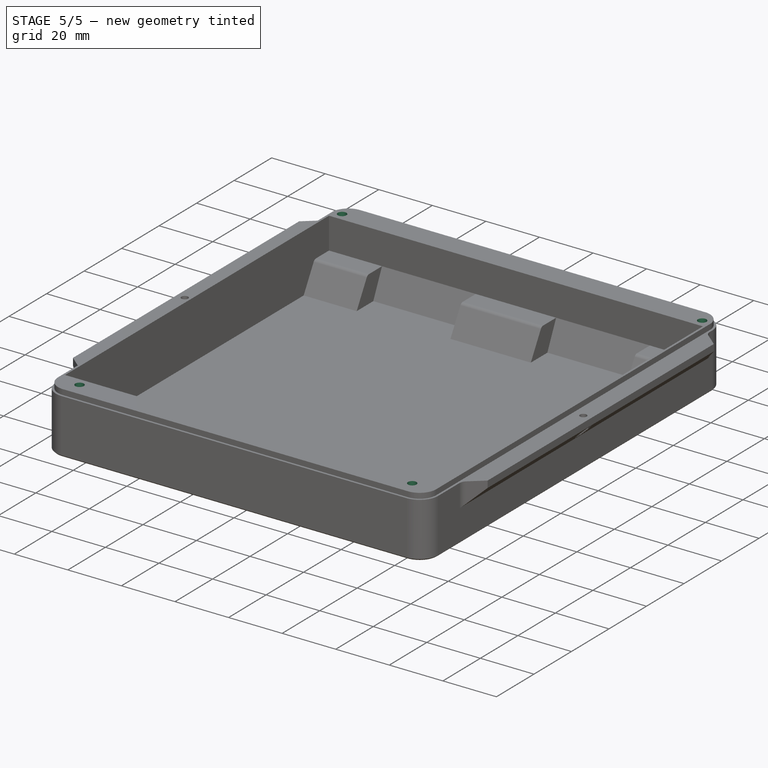
[diagram: stage 5 of 5 — iso view after this stage's code; geometry added in this stage tinted green]
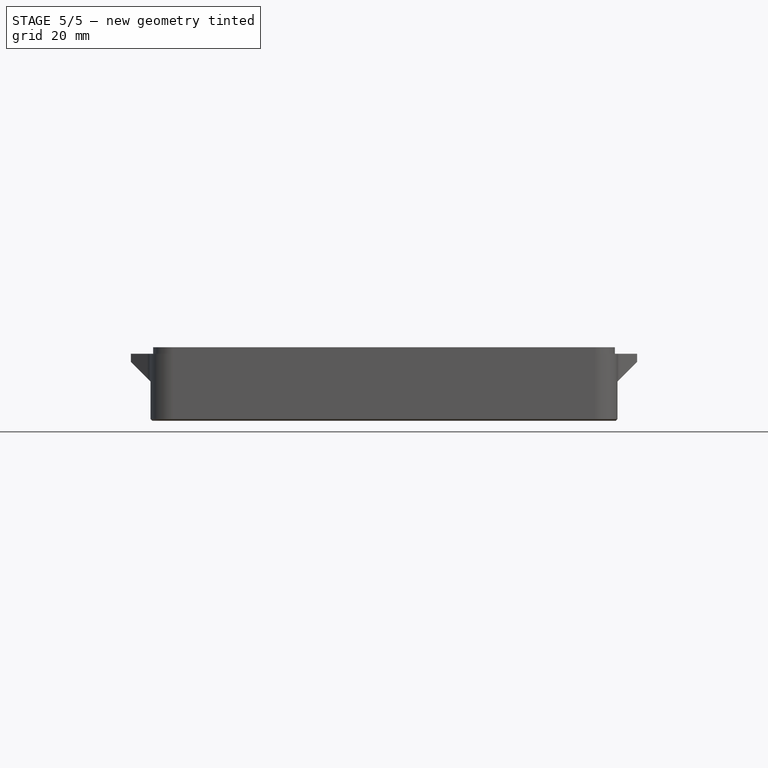
[diagram: stage 5 of 5 — front view after this stage's code; geometry added in this stage tinted green]
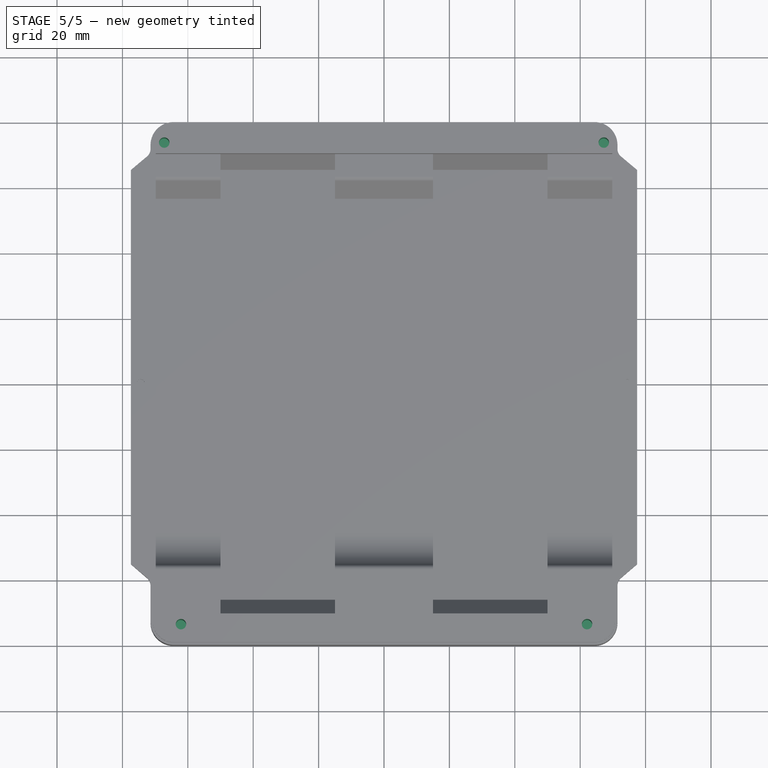
[diagram: stage 5 of 5 — top view after this stage's code; geometry added in this stage tinted green]
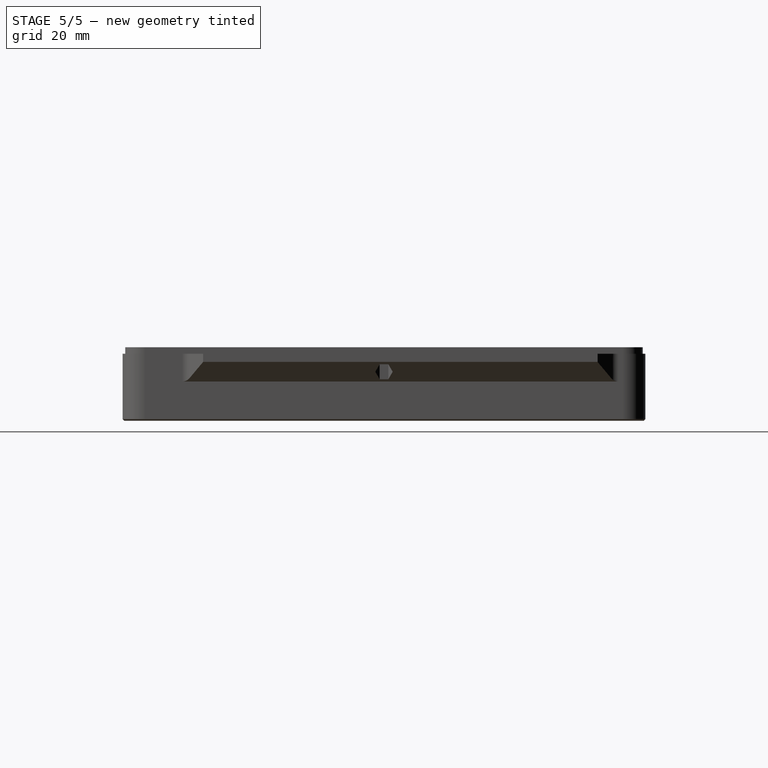
[diagram: stage 5 of 5 — right view after this stage's code; geometry added in this stage tinted green]
FEATURE [Sketcher::SketchObject] Sketch014
  ArcFitTolerance = 1e-06
  AttachmentSupport = -> [Draft002]
  ExternalBSplineMaxDegree = 5
  ExternalBSplineTolerance = 0.0001
  ExternalGeometry = -> [Draft002]
  FullyConstrained = true
  InternalTolerance = 1e-06
  MakeInternals = false
  MapMode = 5
  Placement = pos=(0,0,22.5) rot=(0,0,1;0rad)
  Support = -> [Draft002]
  TreeRank = 51
  expr: Constraints[7] = 6 + 6.6 / 2
  sketch-geometry (4):
    g0: Circle CenterX=67.2142 CenterY=73.65 CenterZ=0 NormalX=0 NormalY=0 NormalZ=1 AngleXU=0 Radius=1.6
    g1: Circle [constr] CenterX=67.2142 CenterY=73.65 CenterZ=0 NormalX=0 NormalY=0 NormalZ=1 AngleXU=0 Radius=3.3
    g2: Circle [constr] CenterX=62.1 CenterY=-73.65 CenterZ=0 NormalX=0 NormalY=0 NormalZ=1 AngleXU=0 Radius=3.3
    g3: Circle CenterX=62.1 CenterY=-73.65 CenterZ=0 NormalX=0 NormalY=0 NormalZ=1 AngleXU=0 Radius=1.6
  constraints (10):
    c: Diameter(g0) = 3.2
    c: Diameter(g1) = 6.6
    c: Tangent(g1,g-3)
    c: Tangent(g1,g-4)
    c: Coincident(g0,g1)
    c: Diameter(g2) = 6.6
    c: Tangent(g2,g-5)
    c: Distance(g2,g-6) = 9.3
    c: Diameter(g3) = 3.2
    c: Coincident(g3,g2)
FEATURE [PartDesign::Pad] Pad014  label="shell screw holes"
  AddSubType = 1
  AlongSketchNormal = false
  AutoTaperInnerAngle = true
  BaseFeature = -> Draft002
  CheckUpToFaceLimits = true
  ClaimChildren = false
  Direction = (0,0,1)
  Fit = 0
  FitJoin = 0
  InnerFit = 0
  InnerFitJoin = 0
  Length = 10
  Length2 = 100
  Linearize = true
  NewSolid = false
  Profile = -> Sketch014
  Suppress = false
  TaperInnerAngle = 0
  TaperInnerAngleRev = 0
  TreeRank = 52
  Type = 3
  UpToFace = -> Draft002 [Face82]
  _ProfileBasedVersion = 1
FEATURE [Sketcher::SketchObject] Sketch015
  ArcFitTolerance = 1e-06
  AttachmentSupport = -> [Pad014]
  ExternalBSplineMaxDegree = 5
  ExternalBSplineTolerance = 0.0001
  ExternalGeometry = -> [Pad014]
  FullyConstrained = true
  InternalTolerance = 1e-06
  MakeInternals = false
  MapMode = 5
  Placement = pos=(0,0,0) rot=(1,0,0;3.14159rad)
  Support = -> [Pad014]
  TreeRank = 53
  sketch-geometry (2):
    g0: Circle CenterX=62.1 CenterY=73.65 CenterZ=0 NormalX=0 NormalY=0 NormalZ=1 AngleXU=0 Radius=2.95
    g1: Circle CenterX=67.2142 CenterY=-73.65 CenterZ=0 NormalX=0 NormalY=0 NormalZ=1 AngleXU=0 Radius=2.95
  constraints (4):
    c: Coincident(g0,g-4)
    c: Coincident(g1,g-3)
    c: Diameter(g1) = 5.9
    c: Diameter(g0) = 5.9
FEATURE [PartDesign::Pad] Pad015  label="shell screw recess"
  AddSubType = 1
  AlongSketchNormal = false
  AutoTaperInnerAngle = true
  BaseFeature = -> Pad014
  CheckUpToFaceLimits = true
  ClaimChildren = false
  Direction = (0,0,-1)
  Fit = 0
  FitJoin = 0
  InnerFit = 0
  InnerFitJoin = 0
  Length = 2
  Length2 = 100
  Linearize = true
  NewSolid = false
  Profile = -> Sketch015
  Reversed = true
  Suppress = false
  TaperInnerAngle = 0
  TaperInnerAngleRev = 0
  TreeRank = 54
  Type = 0
  _ProfileBasedVersion = 1
FEATURE [Sketcher::SketchObject] Sketch016
  ArcFitTolerance = 1e-06
  AttachmentSupport = -> [Pad015]
  ExternalBSplineMaxDegree = 5
  ExternalBSplineTolerance = 0.0001
  ExternalGeometry = -> [Pad015]
  FullyConstrained = true
  InternalTolerance = 1e-06
  MakeInternals = false
  MapMode = 5
  Placement = pos=(0,0,2) rot=(1,0,0;3.14159rad)
  Support = -> [Pad015]
  TreeRank = 55
  sketch-geometry (2):
    g0: Circle CenterX=67.2142 CenterY=-73.65 CenterZ=0 NormalX=0 NormalY=0 NormalZ=1 AngleXU=0 Radius=1.65
    g1: Circle CenterX=62.1 CenterY=73.65 CenterZ=0 NormalX=0 NormalY=0 NormalZ=1 AngleXU=0 Radius=1.65
  constraints (4):
    c: Diameter(g1) = 3.3
    c: Coincident(g1,g-3)
    c: Diameter(g0) = 3.3
    c: Coincident(g0,g-4)
FEATURE [PartDesign::Pad] Pad016  label="shell screw printing support"
  AddSubType = 0
  AlongSketchNormal = false
  AutoTaperInnerAngle = true
  BaseFeature = -> Pad015
  CheckUpToFaceLimits = true
  ClaimChildren = false
  Direction = (0,0,-1)
  Fit = 0
  FitJoin = 0
  InnerFit = 0
  InnerFitJoin = 0
  Length = 0.25
  Length2 = 100
  Linearize = true
  NewSolid = false
  Profile = -> Sketch016
  Reversed = true
  Suppress = false
  TaperInnerAngle = 0
  TaperInnerAngleRev = 0
  TreeRank = 56
  Type = 0
  _ProfileBasedVersion = 1
FEATURE [PartDesign::Mirrored] Mirrored003  label="mirror shell screws"
  AddSubType = 0
  BaseFeature = -> Pad016
  CopyShape = false
  MirrorPlane = -> YZ_Plane
  NewSolid = false
  OriginalSubs = -> [Pad016,Pad015,Pad014]
  Originals = -> [Pad016,Pad015,Pad014]
  ParallelTransform = true
  SubTransform = true
  Suppress = false
  TreeRank = 57
  _Version = 3
FEATURE [PartDesign::Fillet] Fillet003
  AddSubType = 0
  Base = -> Mirrored003 [Edge199,Edge197,Edge219,Edge217]
  BaseFeature = -> Mirrored003
  NewSolid = false
  Radius = 3
  SupportTransform = false
  Suppress = false
  TreeRank = 58
FEATURE [PartDesign::Chamfer] Chamfer
  AddSubType = 0
  Angle = 45
  Base = -> Fillet003 [Edge14,Edge79,Edge91,Edge89,Edge86,Edge78,Edge108,Edge136,Edge134,Edge132,Edge130,Edge56]
  BaseFeature = -> Fillet003
  ChamferType = 0
  FlipDirection = false
  NewSolid = false
  Size = 0.5
  Size2 = 1
  SupportTransform = false
  Suppress = false
  TreeRank = 59
FEATURE [PartDesign::Body] Body
  AutoGroupSolids = false
  ClaimAllChildren = false
  ExportMode = 0
  Group = -> [Sketch,Pad,Sketch001,Pad001,Fillet,Sketch002,Pad002,Sketch003,Pad003,Sketch004,Pad004,Sketch005,Pad005,Sketch006,Pad006,Sketch007,Pad007,Sketch008,Pad008,Mirrored,Sketch009,Pad009,Mirrored001,Fillet001,Fillet002,Sketch010,Pad010,Draft,Sketch011,Pad011,Sketch012,Pad012,Sketch013,Pad013,Mirrored002,Draft001,Draft002,Sketch014,Pad014,Sketch015,Pad015,Sketch016,Pad016,Mirrored003,Fillet003,Chamfer]
  Origin = -> Origin
  Tip = -> Chamfer
  TreeRank = 13
  _ExportChildren = -> [Pad,Pad001,Fillet,Pad002,Pad003,Pad004,Pad005,Pad006,Pad007,Pad008,Mirrored,Pad009,Mirrored001,Fillet001,Fillet002,Pad010,Draft,Pad011,Pad012,Pad013,Mirrored002,Draft001,Draft002,Pad014,Pad015,Pad016,Mirrored003,Fillet003,Chamfer]
  _GroupVersion = 1
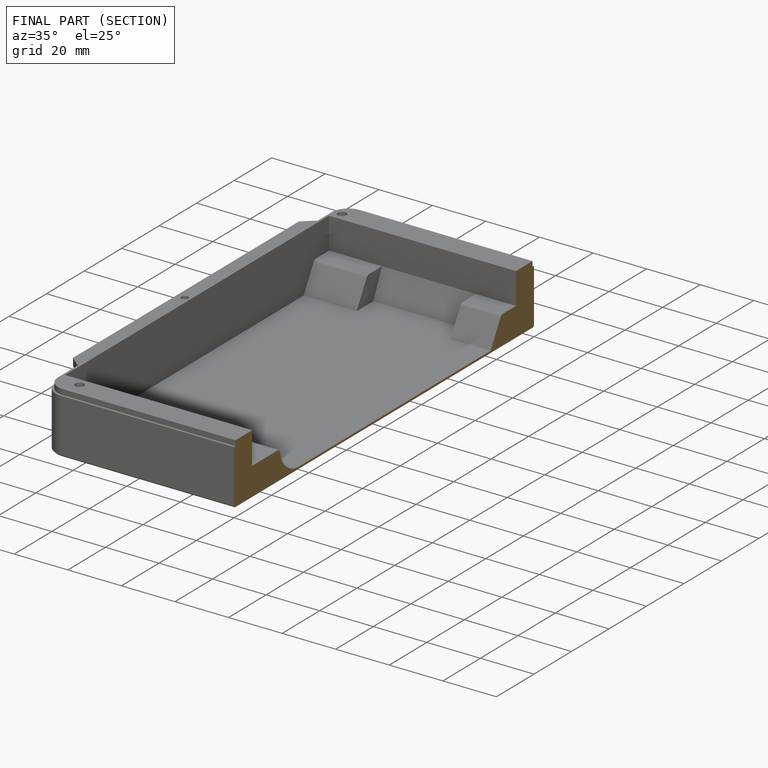
[diagram: finished part — half-section view (interior)]
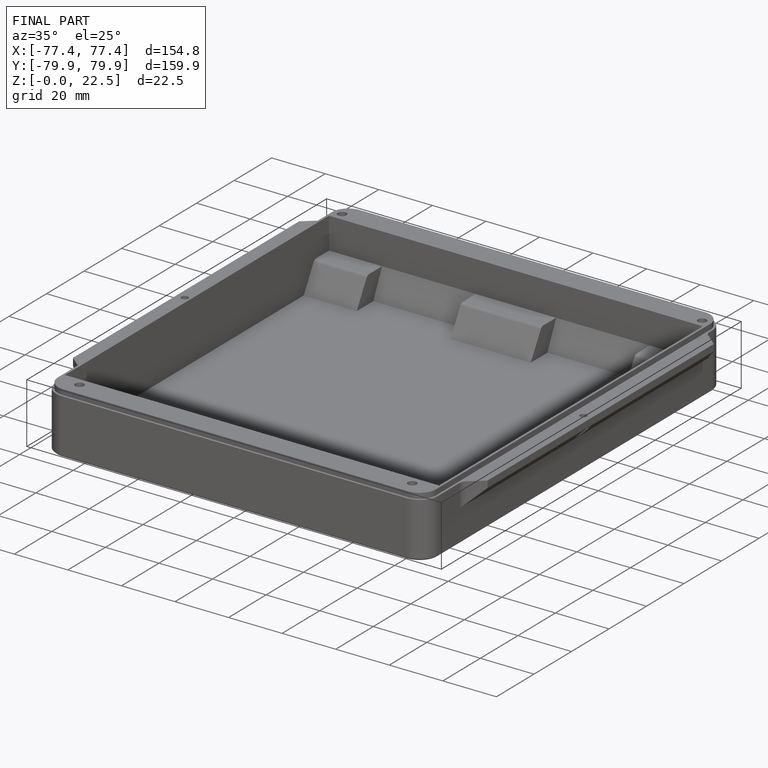
[diagram: finished part — iso view with bounding-box wireframe]
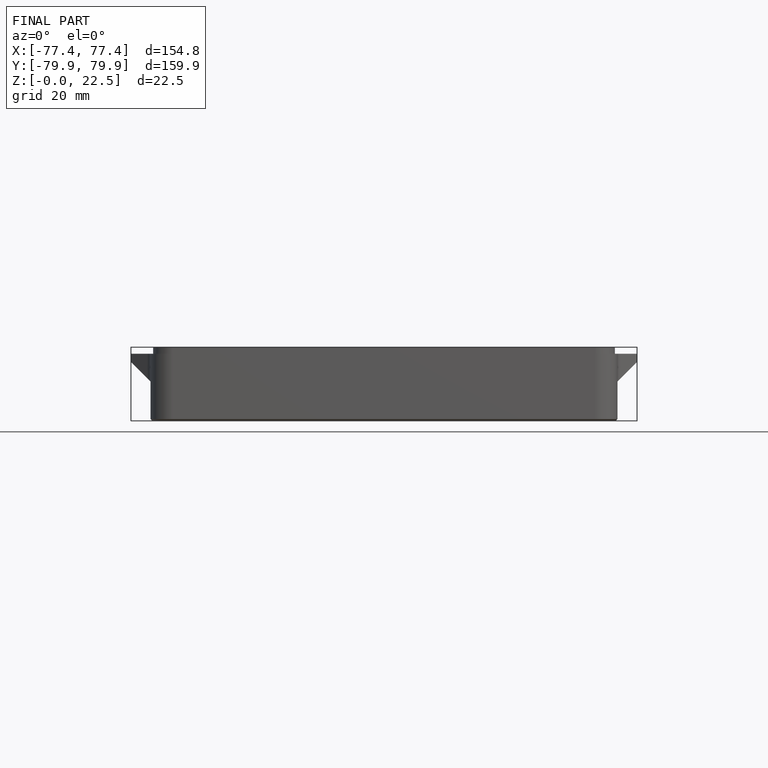
[diagram: finished part — front view with bounding-box wireframe]
